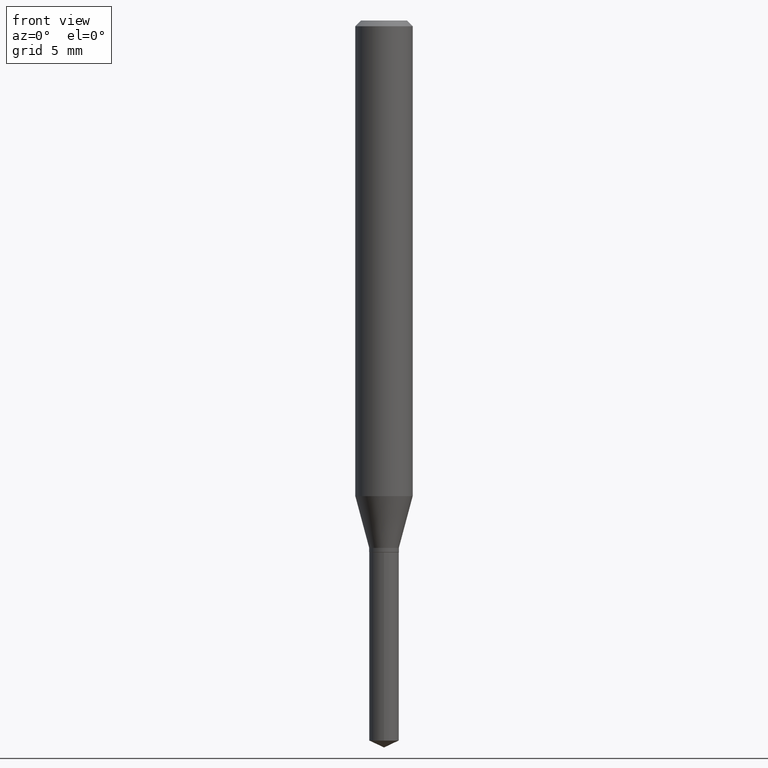
[diagram: clean part render]
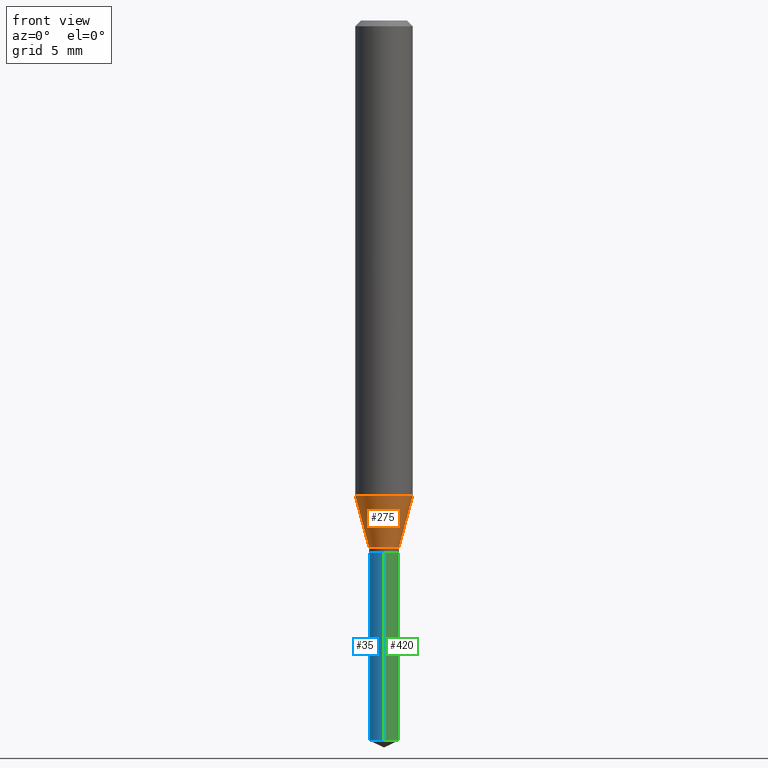
[diagram: same view with three faces highlighted in distinct colors, each labeled with its STEP entity id]
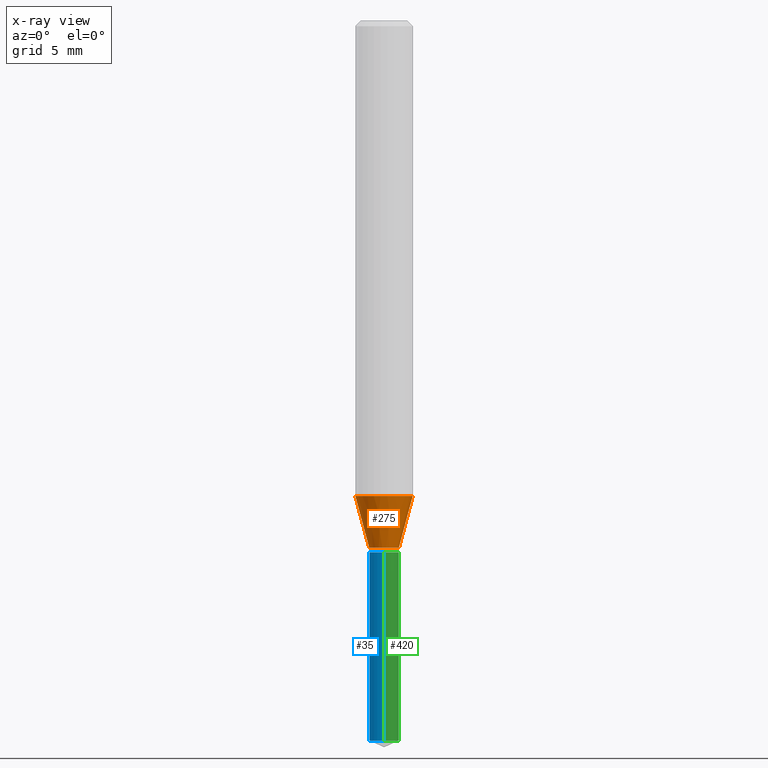
[diagram: x-ray of the same camera — body ghosted, the three highlighted faces saturated]
A machine part, front view with three faces highlighted in distinct colors.
The next image is the same camera in x-ray (body ghosted, the three faces saturated) — at least one of them is partly hidden behind the body in this view.
Their STEP definitions:

[orange] entity #275 — the highlighted conical surface has half-angle 15 deg.
#14 = EDGE_LOOP ( 'NONE', ( #466, #46, #18, #101 ) ) ;
#18 = ORIENTED_EDGE ( 'NONE', *, *, #339, .T. ) ;
#37 = AXIS2_PLACEMENT_3D ( 'NONE', #436, #433, #359 ) ;
#46 = ORIENTED_EDGE ( 'NONE', *, *, #479, .T. ) ;
#60 = VERTEX_POINT ( 'NONE', #399 ) ;
#76 = CARTESIAN_POINT ( 'NONE',  ( -0.05905000000000011628, -2.997711698410737591E-15, -0.9787499494439081404 ) ) ;
#96 = DIRECTION ( 'NONE',  ( 0.2588190451025212391, 1.565188264969622362E-15, 0.9659258262890679791 ) ) ;
#101 = ORIENTED_EDGE ( 'NONE', *, *, #449, .F. ) ;
#104 = CARTESIAN_POINT ( 'NONE',  ( 2.393502470420357058E-29, -3.417287183877077478E-15, -0.9787499494439081404 ) ) ;
#105 = DIRECTION ( 'NONE',  ( -0.2588190451025212391, 5.211531920934549464E-15, 0.9659258262890679791 ) ) ;
#131 = AXIS2_PLACEMENT_3D ( 'NONE', #408, #348, #458 ) ;
#137 = CARTESIAN_POINT ( 'NONE',  ( -0.03049999999999998546, -3.587777106463602651E-15, -1.085299999999999931 ) ) ;
#155 = AXIS2_PLACEMENT_3D ( 'NONE', #104, #252, #370 ) ;
#161 = VERTEX_POINT ( 'NONE', #137 ) ;
#198 = CIRCLE ( 'NONE', #131, 0.03049999999999998546 ) ;
#201 = EDGE_CURVE ( 'NONE', #161, #382, #367, .T. ) ;
#212 = FACE_OUTER_BOUND ( 'NONE', #14, .T. ) ;
#240 = CONICAL_SURFACE ( 'NONE', #37, 0.03049999999999998546, 0.2617993877991499629 ) ;
#252 = DIRECTION ( 'NONE',  ( -2.445468806185136597E-29, 3.491481338843145583E-15, 1.000000000000000000 ) ) ;
#275 = ADVANCED_FACE ( 'NONE', ( #212 ), #240, .T. ) ;
#323 = CARTESIAN_POINT ( 'NONE',  ( 0.03049999999999998546, -4.002285058715896854E-15, -1.085299999999999931 ) ) ;
#330 = CARTESIAN_POINT ( 'NONE',  ( 0.05905000000000011628, -3.829631129994452398E-15, -0.9787499494439081404 ) ) ;
#339 = EDGE_CURVE ( 'NONE', #60, #384, #400, .T. ) ;
#348 = DIRECTION ( 'NONE',  ( -2.445468806185136597E-29, 3.491481338843145583E-15, 1.000000000000000000 ) ) ;
#359 = DIRECTION ( 'NONE',  ( 1.000000000000000000, -6.982962677686272233E-15, 0.000000000000000000 ) ) ;
#367 = LINE ( 'NONE', #446, #452 ) ;
#370 = DIRECTION ( 'NONE',  ( 1.000000000000000000, -6.982962677686266711E-15, 0.000000000000000000 ) ) ;
#382 = VERTEX_POINT ( 'NONE', #76 ) ;
#384 = VERTEX_POINT ( 'NONE', #330 ) ;
#399 = CARTESIAN_POINT ( 'NONE',  ( 0.03049999999999998546, -4.002285058715896854E-15, -1.085299999999999931 ) ) ;
#400 = LINE ( 'NONE', #323, #415 ) ;
#408 = CARTESIAN_POINT ( 'NONE',  ( 2.654067295352728283E-29, -3.789304697046465530E-15, -1.085299999999999931 ) ) ;
#415 = VECTOR ( 'NONE', #96, 39.37007874015748854 ) ;
#433 = DIRECTION ( 'NONE',  ( -2.445468806185136597E-29, 3.491481338843145583E-15, 1.000000000000000000 ) ) ;
#436 = CARTESIAN_POINT ( 'NONE',  ( 2.654067295352728283E-29, -3.789304697046465530E-15, -1.085299999999999931 ) ) ;
#446 = CARTESIAN_POINT ( 'NONE',  ( -0.03049999999999998546, -3.572589162639635175E-15, -1.085299999999999931 ) ) ;
#449 = EDGE_CURVE ( 'NONE', #382, #384, #451, .T. ) ;
#451 = CIRCLE ( 'NONE', #155, 0.05905000000000011628 ) ;
#452 = VECTOR ( 'NONE', #105, 39.37007874015748854 ) ;
#458 = DIRECTION ( 'NONE',  ( 1.000000000000000000, -6.982962677686272233E-15, 0.000000000000000000 ) ) ;
#466 = ORIENTED_EDGE ( 'NONE', *, *, #201, .F. ) ;
#479 = EDGE_CURVE ( 'NONE', #161, #60, #198, .T. ) ;

[blue] entity #35 — the highlighted cylindrical surface (edge-blend (fillet) strip) has radius 0.7747 mm, axis along (-0, 0, 1).
#10 = VERTEX_POINT ( 'NONE', #227 ) ;
#13 = CIRCLE ( 'NONE', #343, 0.03049999999999999586 ) ;
#21 = VECTOR ( 'NONE', #288, 39.37007874015748143 ) ;
#32 = LINE ( 'NONE', #135, #21 ) ;
#35 = ADVANCED_FACE ( 'NONE', ( #407 ), #38, .T. ) ;
#38 = CYLINDRICAL_SURFACE ( 'NONE', #260, 0.03049999999999999586 ) ;
#56 = CIRCLE ( 'NONE', #152, 0.03049999999999999586 ) ;
#65 = DIRECTION ( 'NONE',  ( -6.982962677686265922E-15, -1.000000000000000000, 0.000000000000000000 ) ) ;
#67 = EDGE_CURVE ( 'NONE', #10, #259, #56, .T. ) ;
#80 = EDGE_CURVE ( 'NONE', #259, #233, #321, .T. ) ;
#82 = ORIENTED_EDGE ( 'NONE', *, *, #80, .T. ) ;
#85 = EDGE_CURVE ( 'NONE', #89, #233, #13, .T. ) ;
#89 = VERTEX_POINT ( 'NONE', #324 ) ;
#93 = DIRECTION ( 'NONE',  ( -6.982962677686265922E-15, -1.000000000000000000, 4.478439333875842027E-15 ) ) ;
#103 = CARTESIAN_POINT ( 'NONE',  ( -2.129803616694043302E-16, -0.03050000000000381919, -1.094499999999999806 ) ) ;
#113 = ORIENTED_EDGE ( 'NONE', *, *, #67, .T. ) ;
#135 = CARTESIAN_POINT ( 'NONE',  ( 2.167155344068572500E-16, 0.03049999999999617600, -1.094500000000000028 ) ) ;
#142 = CARTESIAN_POINT ( 'NONE',  ( -2.129803616694043302E-16, -0.03050000000000381919, -1.094499999999999806 ) ) ;
#144 = CARTESIAN_POINT ( 'NONE',  ( -2.129803616693949131E-16, -0.03050000000000517922, -1.481877616426272581 ) ) ;
#152 = AXIS2_PLACEMENT_3D ( 'NONE', #237, #317, #65 ) ;
#205 = DIRECTION ( 'NONE',  ( -6.982962677686265922E-15, -1.000000000000000000, 4.478439333875842027E-15 ) ) ;
#208 = DIRECTION ( 'NONE',  ( -2.445402730703145379E-29, 3.491575962694140016E-15, 1.000000000000000000 ) ) ;
#213 = CARTESIAN_POINT ( 'NONE',  ( 2.676565608369631794E-29, -3.821426325363822773E-15, -1.094499999999999806 ) ) ;
#216 = DIRECTION ( 'NONE',  ( -2.445402730703145379E-29, 3.491575962694140016E-15, 1.000000000000000000 ) ) ;
#227 = CARTESIAN_POINT ( 'NONE',  ( 2.167155344068667903E-16, 0.03049999999999482986, -1.481877616426272581 ) ) ;
#233 = VERTEX_POINT ( 'NONE', #103 ) ;
#237 = CARTESIAN_POINT ( 'NONE',  ( 3.623859889391714850E-29, -5.173984699363546681E-15, -1.481877616426272581 ) ) ;
#253 = EDGE_CURVE ( 'NONE', #10, #89, #32, .T. ) ;
#259 = VERTEX_POINT ( 'NONE', #144 ) ;
#260 = AXIS2_PLACEMENT_3D ( 'NONE', #213, #208, #93 ) ;
#265 = ORIENTED_EDGE ( 'NONE', *, *, #85, .F. ) ;
#285 = CARTESIAN_POINT ( 'NONE',  ( 2.676565608369631794E-29, -3.821426325363822773E-15, -1.094499999999999806 ) ) ;
#288 = DIRECTION ( 'NONE',  ( -2.445402730703145379E-29, 3.491575962694140016E-15, 1.000000000000000000 ) ) ;
#311 = EDGE_LOOP ( 'NONE', ( #459, #113, #82, #265 ) ) ;
#317 = DIRECTION ( 'NONE',  ( -2.445402730703145379E-29, 3.491575962694140016E-15, 1.000000000000000000 ) ) ;
#321 = LINE ( 'NONE', #142, #419 ) ;
#324 = CARTESIAN_POINT ( 'NONE',  ( 2.167155344068668396E-16, 0.03049999999999617600, -1.094500000000000028 ) ) ;
#343 = AXIS2_PLACEMENT_3D ( 'NONE', #285, #443, #205 ) ;
#407 = FACE_OUTER_BOUND ( 'NONE', #311, .T. ) ;
#419 = VECTOR ( 'NONE', #216, 39.37007874015748143 ) ;
#443 = DIRECTION ( 'NONE',  ( -2.445402730703145379E-29, 3.491575962694140016E-15, 1.000000000000000000 ) ) ;
#459 = ORIENTED_EDGE ( 'NONE', *, *, #253, .F. ) ;

[green] entity #420 — the highlighted cylindrical surface (edge-blend (fillet) strip) has radius 0.7747 mm, axis along (-0, 0, 1).
#7 = DIRECTION ( 'NONE',  ( -2.445402730703145379E-29, 3.491575962694140016E-15, 1.000000000000000000 ) ) ;
#9 = AXIS2_PLACEMENT_3D ( 'NONE', #140, #23, #444 ) ;
#10 = VERTEX_POINT ( 'NONE', #227 ) ;
#21 = VECTOR ( 'NONE', #288, 39.37007874015748143 ) ;
#23 = DIRECTION ( 'NONE',  ( -2.445402730703145379E-29, 3.491575962694140016E-15, 1.000000000000000000 ) ) ;
#32 = LINE ( 'NONE', #135, #21 ) ;
#49 = AXIS2_PLACEMENT_3D ( 'NONE', #338, #7, #181 ) ;
#80 = EDGE_CURVE ( 'NONE', #259, #233, #321, .T. ) ;
#89 = VERTEX_POINT ( 'NONE', #324 ) ;
#103 = CARTESIAN_POINT ( 'NONE',  ( -2.129803616694043302E-16, -0.03050000000000381919, -1.094499999999999806 ) ) ;
#112 = DIRECTION ( 'NONE',  ( -2.445402730703145379E-29, 3.491575962694140016E-15, 1.000000000000000000 ) ) ;
#130 = ORIENTED_EDGE ( 'NONE', *, *, #344, .F. ) ;
#135 = CARTESIAN_POINT ( 'NONE',  ( 2.167155344068572500E-16, 0.03049999999999617600, -1.094500000000000028 ) ) ;
#140 = CARTESIAN_POINT ( 'NONE',  ( 2.676565608369631794E-29, -3.821426325363822773E-15, -1.094499999999999806 ) ) ;
#142 = CARTESIAN_POINT ( 'NONE',  ( -2.129803616694043302E-16, -0.03050000000000381919, -1.094499999999999806 ) ) ;
#144 = CARTESIAN_POINT ( 'NONE',  ( -2.129803616693949131E-16, -0.03050000000000517922, -1.481877616426272581 ) ) ;
#149 = CARTESIAN_POINT ( 'NONE',  ( 3.623859889391714850E-29, -5.173984699363546681E-15, -1.481877616426272581 ) ) ;
#156 = EDGE_LOOP ( 'NONE', ( #228, #389, #130, #352 ) ) ;
#159 = AXIS2_PLACEMENT_3D ( 'NONE', #149, #112, #448 ) ;
#181 = DIRECTION ( 'NONE',  ( -6.982962677686265922E-15, -1.000000000000000000, 4.478439333875842027E-15 ) ) ;
#190 = CYLINDRICAL_SURFACE ( 'NONE', #49, 0.03049999999999999586 ) ;
#216 = DIRECTION ( 'NONE',  ( -2.445402730703145379E-29, 3.491575962694140016E-15, 1.000000000000000000 ) ) ;
#227 = CARTESIAN_POINT ( 'NONE',  ( 2.167155344068667903E-16, 0.03049999999999482986, -1.481877616426272581 ) ) ;
#228 = ORIENTED_EDGE ( 'NONE', *, *, #435, .T. ) ;
#233 = VERTEX_POINT ( 'NONE', #103 ) ;
#253 = EDGE_CURVE ( 'NONE', #10, #89, #32, .T. ) ;
#259 = VERTEX_POINT ( 'NONE', #144 ) ;
#288 = DIRECTION ( 'NONE',  ( -2.445402730703145379E-29, 3.491575962694140016E-15, 1.000000000000000000 ) ) ;
#321 = LINE ( 'NONE', #142, #419 ) ;
#324 = CARTESIAN_POINT ( 'NONE',  ( 2.167155344068668396E-16, 0.03049999999999617600, -1.094500000000000028 ) ) ;
#338 = CARTESIAN_POINT ( 'NONE',  ( 2.676565608369631794E-29, -3.821426325363822773E-15, -1.094499999999999806 ) ) ;
#344 = EDGE_CURVE ( 'NONE', #233, #89, #368, .T. ) ;
#352 = ORIENTED_EDGE ( 'NONE', *, *, #80, .F. ) ;
#368 = CIRCLE ( 'NONE', #9, 0.03049999999999999586 ) ;
#380 = CIRCLE ( 'NONE', #159, 0.03049999999999999586 ) ;
#389 = ORIENTED_EDGE ( 'NONE', *, *, #253, .T. ) ;
#419 = VECTOR ( 'NONE', #216, 39.37007874015748143 ) ;
#420 = ADVANCED_FACE ( 'NONE', ( #490 ), #190, .T. ) ;
#435 = EDGE_CURVE ( 'NONE', #259, #10, #380, .T. ) ;
#444 = DIRECTION ( 'NONE',  ( -6.982962677686265922E-15, -1.000000000000000000, 4.478439333875842027E-15 ) ) ;
#448 = DIRECTION ( 'NONE',  ( -6.982962677686265922E-15, -1.000000000000000000, 0.000000000000000000 ) ) ;
#490 = FACE_OUTER_BOUND ( 'NONE', #156, .T. ) ;